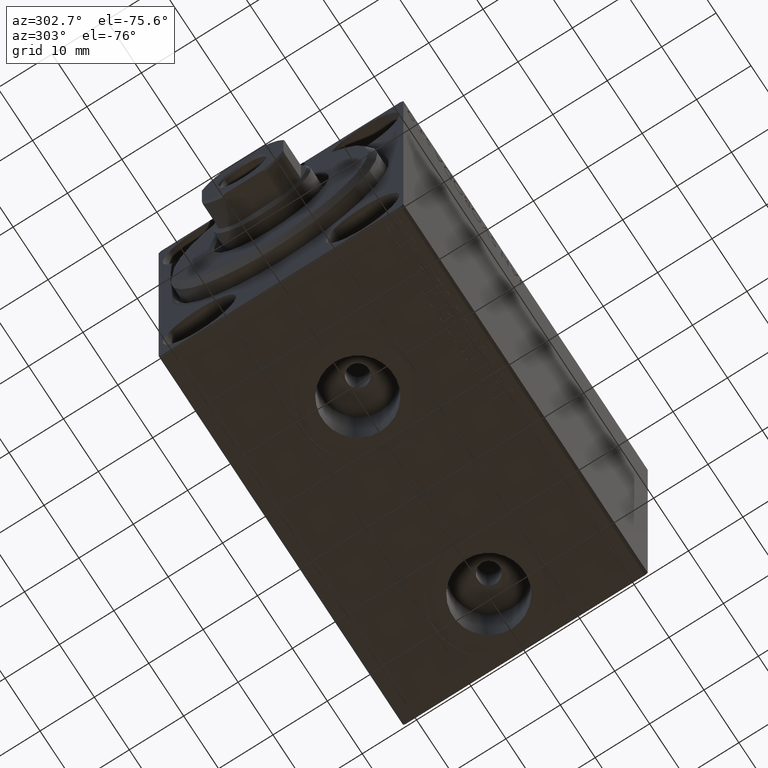
[diagram: clean part render]
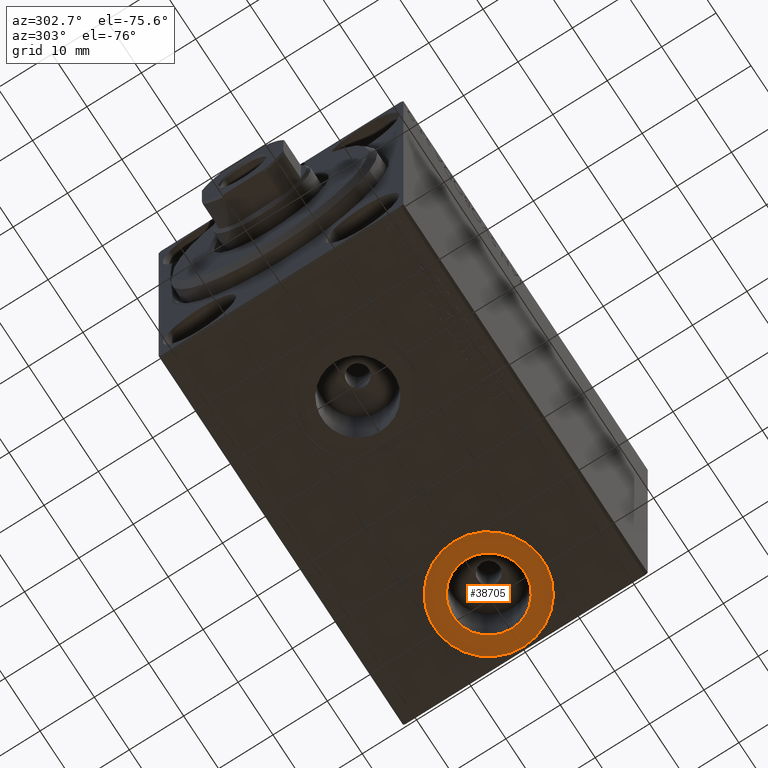
[diagram: same view with one face highlighted and labeled with its STEP entity id]
A machine part, auxiliary view. The second image highlights one B-rep face of the part: STEP entity #38705.
In plain terms, the highlighted planar face has unit normal (0, 0, -1).
Its self-contained STEP definition (entity closure, byte-faithful):
#201 = CIRCLE ( 'NONE', #25059, 10.00000000000000178 ) ;
#471 = CIRCLE ( 'NONE', #36751, 6.580000000000002736 ) ;
#932 = DIRECTION ( 'NONE',  ( -1.000000000000000000, 0.000000000000000000, 0.000000000000000000 ) ) ;
#1101 = ORIENTED_EDGE ( 'NONE', *, *, #34417, .F. ) ;
#4476 = DIRECTION ( 'NONE',  ( 0.000000000000000000, 0.000000000000000000, -1.000000000000000000 ) ) ;
#6228 = DIRECTION ( 'NONE',  ( 0.000000000000000000, 0.000000000000000000, -1.000000000000000000 ) ) ;
#7591 = VERTEX_POINT ( 'NONE', #40781 ) ;
#9188 = AXIS2_PLACEMENT_3D ( 'NONE', #29890, #43466, #40132 ) ;
#9475 = DIRECTION ( 'NONE',  ( -1.000000000000000000, 0.000000000000000000, 0.000000000000000000 ) ) ;
#9671 = ORIENTED_EDGE ( 'NONE', *, *, #24838, .T. ) ;
#10652 = CARTESIAN_POINT ( 'NONE',  ( 66.07999999999999829, -5.850147353426743435E-15, -32.40000000000000568 ) ) ;
#11870 = DIRECTION ( 'NONE',  ( -1.000000000000000000, 0.000000000000000000, 0.000000000000000000 ) ) ;
#12576 = VERTEX_POINT ( 'NONE', #10652 ) ;
#13186 = EDGE_CURVE ( 'NONE', #7591, #43507, #201, .T. ) ;
#15209 = CARTESIAN_POINT ( 'NONE',  ( 59.50000000000000711, -6.655964947265702476E-15, -32.40000000000000568 ) ) ;
#16240 = DIRECTION ( 'NONE',  ( -1.000000000000000000, 0.000000000000000000, 0.000000000000000000 ) ) ;
#16706 = AXIS2_PLACEMENT_3D ( 'NONE', #15209, #35664, #11870 ) ;
#19664 = FACE_BOUND ( 'NONE', #21602, .T. ) ;
#21602 = EDGE_LOOP ( 'NONE', ( #1101, #27249 ) ) ;
#21976 = EDGE_LOOP ( 'NONE', ( #42721, #9671 ) ) ;
#22582 = CIRCLE ( 'NONE', #39640, 6.580000000000002736 ) ;
#24506 = CARTESIAN_POINT ( 'NONE',  ( 59.50000000000000711, -6.655964947265702476E-15, -32.40000000000000568 ) ) ;
#24838 = EDGE_CURVE ( 'NONE', #43507, #7591, #29513, .T. ) ;
#25059 = AXIS2_PLACEMENT_3D ( 'NONE', #29725, #36392, #9475 ) ;
#26255 = CARTESIAN_POINT ( 'NONE',  ( 59.50000000000000711, -6.655964947265702476E-15, -32.40000000000000568 ) ) ;
#27249 = ORIENTED_EDGE ( 'NONE', *, *, #38091, .F. ) ;
#29513 = CIRCLE ( 'NONE', #16706, 10.00000000000000178 ) ;
#29725 = CARTESIAN_POINT ( 'NONE',  ( 59.50000000000000711, -6.655964947265702476E-15, -32.40000000000000568 ) ) ;
#29890 = CARTESIAN_POINT ( 'NONE',  ( 59.50000000000000711, -6.655964947265702476E-15, -32.40000000000000568 ) ) ;
#30538 = FACE_OUTER_BOUND ( 'NONE', #21976, .T. ) ;
#31388 = VERTEX_POINT ( 'NONE', #31412 ) ;
#31412 = CARTESIAN_POINT ( 'NONE',  ( 52.92000000000000171, -6.655964947265702476E-15, -32.40000000000000568 ) ) ;
#33238 = PLANE ( 'NONE',  #9188 ) ;
#34417 = EDGE_CURVE ( 'NONE', #31388, #12576, #471, .T. ) ;
#35664 = DIRECTION ( 'NONE',  ( 0.000000000000000000, 0.000000000000000000, -1.000000000000000000 ) ) ;
#36392 = DIRECTION ( 'NONE',  ( 0.000000000000000000, 0.000000000000000000, -1.000000000000000000 ) ) ;
#36751 = AXIS2_PLACEMENT_3D ( 'NONE', #24506, #4476, #932 ) ;
#38091 = EDGE_CURVE ( 'NONE', #12576, #31388, #22582, .T. ) ;
#38705 = ADVANCED_FACE ( 'NONE', ( #19664, #30538 ), #33238, .T. ) ;
#39177 = CARTESIAN_POINT ( 'NONE',  ( 69.50000000000000000, -5.431318148118349417E-15, -32.40000000000000568 ) ) ;
#39640 = AXIS2_PLACEMENT_3D ( 'NONE', #26255, #6228, #16240 ) ;
#40132 = DIRECTION ( 'NONE',  ( -1.000000000000000000, 0.000000000000000000, -0.000000000000000000 ) ) ;
#40781 = CARTESIAN_POINT ( 'NONE',  ( 49.50000000000000000, -6.655964947265702476E-15, -32.40000000000000568 ) ) ;
#42721 = ORIENTED_EDGE ( 'NONE', *, *, #13186, .T. ) ;
#43466 = DIRECTION ( 'NONE',  ( 0.000000000000000000, 0.000000000000000000, -1.000000000000000000 ) ) ;
#43507 = VERTEX_POINT ( 'NONE', #39177 ) ;